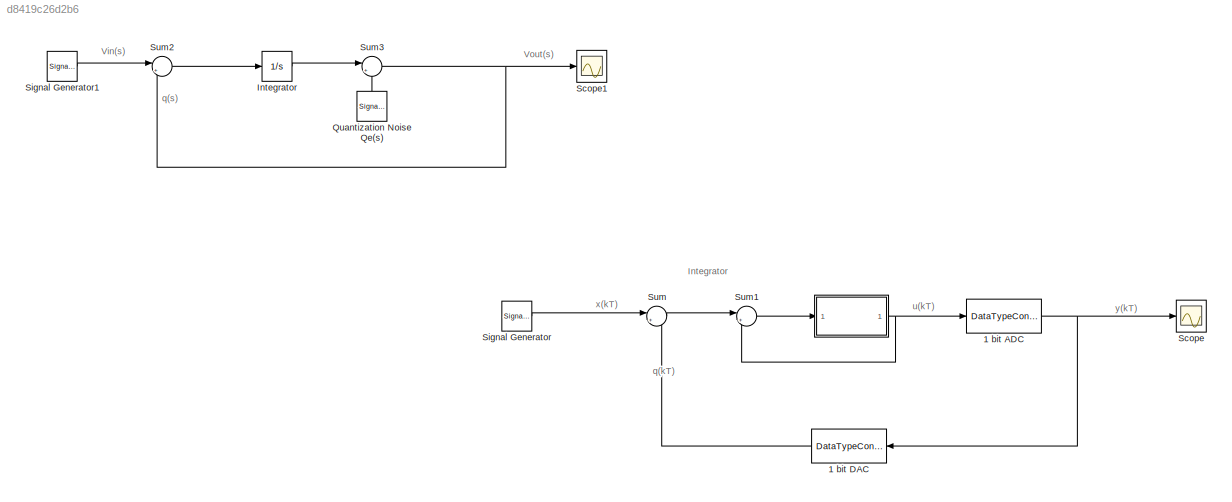
MODEL slx_d8419c26d2b6
KIND model
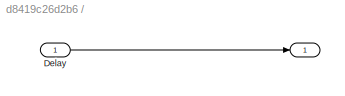
BLOCK [SubSystem]  
  FunctionWithSeparateData = off
  MaskHideContents = off
  MinAlgLoopOccurrences = off
  Opaque = off
  Ports = [1, 1]
  PropExecContextOutsideSubsystem = off
  RTWSystemCode = Auto
  RequestExecContextInheritance = off
BLOCK [Inport]  /							Delay
  IconDisplay = Port number
BLOCK [Outport]  / 
  IconDisplay = Port number
BLOCK [DataTypeConversion] 1 bit ADC
  RndMeth = Floor
  SaturateOnIntegerOverflow = off
BLOCK [DataTypeConversion] 1 bit DAC
  RndMeth = Floor
  SaturateOnIntegerOverflow = off
BLOCK [Integrator] Integrator
  Ports = [1, 1]
BLOCK [SignalGenerator] Quantization Noise Qe(s)
  Ports = [0, 1]
BLOCK [Scope] Scope
  DataFormat = StructureWithTime
  Floating = off
  NumInputPorts = 1
  Ports = [1]
  SampleTime = 0
  ShowLegends = off
BLOCK [Scope] Scope1
  DataFormat = StructureWithTime
  Floating = off
  NumInputPorts = 1
  Ports = [1]
  SampleTime = 0
  SaveName = ScopeData1
  ShowLegends = off
BLOCK [SignalGenerator] Signal Generator
  Ports = [0, 1]
BLOCK [SignalGenerator] Signal Generator1
  Ports = [0, 1]
BLOCK [Sum] Sum
  IconShape = round
  InputSameDT = off
  Inputs = |+-
  OutDataTypeStr = Inherit: Inherit via internal rule
  Ports = [2, 1]
  SaturateOnIntegerOverflow = off
BLOCK [Sum] Sum1
  IconShape = round
  InputSameDT = off
  Inputs = |+-
  OutDataTypeStr = Inherit: Inherit via internal rule
  Ports = [2, 1]
  SaturateOnIntegerOverflow = off
BLOCK [Sum] Sum2
  IconShape = round
  InputSameDT = off
  Inputs = |+-
  OutDataTypeStr = Inherit: Inherit via internal rule
  Ports = [2, 1]
  SaturateOnIntegerOverflow = off
BLOCK [Sum] Sum3
  IconShape = round
  InputSameDT = off
  Inputs = |+-
  OutDataTypeStr = Inherit: Inherit via internal rule
  Ports = [2, 1]
  SaturateOnIntegerOverflow = off
ANNOTATION (root): Integrator
ANNOTATION (root): q(kT)
ANNOTATION (root): q(s)
ANNOTATION (root): Vin(s)
ANNOTATION (root): Vout(s)
ANNOTATION (root): u(kT)
ANNOTATION (root): x(kT)
ANNOTATION (root): y(kT)
LINE  /							Delay:1 ->  / :1
NET  :1 -> 1 bit ADC:1, Sum1:2
NET 1 bit ADC:1 -> 1 bit DAC:1, Scope:1
LINE 1 bit DAC:1 -> Sum:2
LINE Integrator:1 -> Sum3:1
LINE Quantization Noise Qe(s):1 -> Sum3:2
LINE Signal Generator1:1 -> Sum2:1
LINE Signal Generator:1 -> Sum:1
LINE Sum1:1 ->  :1
LINE Sum2:1 -> Integrator:1
NET Sum3:1 -> Scope1:1, Sum2:2
LINE Sum:1 -> Sum1:1
note: NET lines group one-source signal fan-out (src -> all destinations, sorted); 1:1 wires keep LINE
